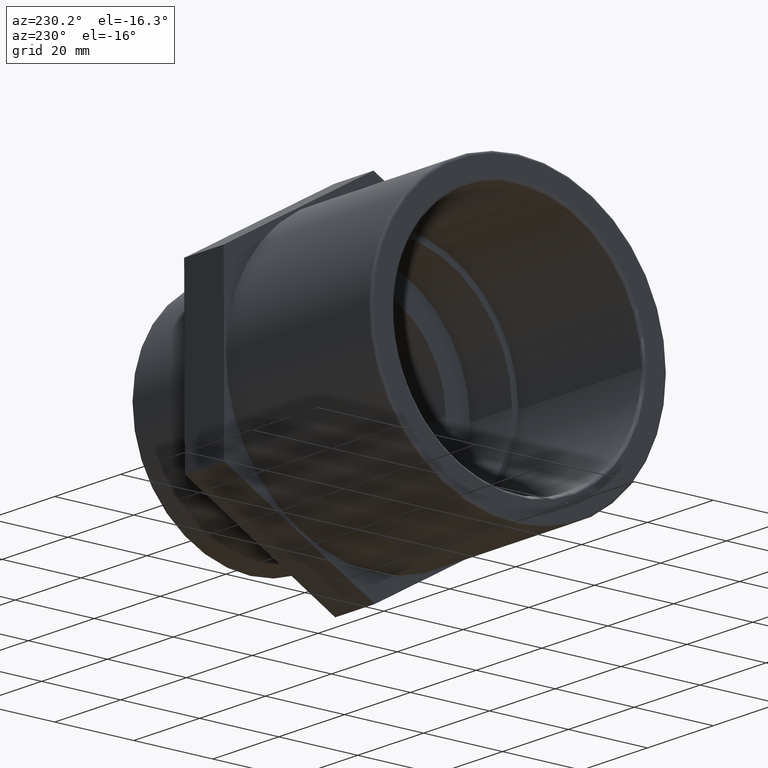
[diagram: clean part render]
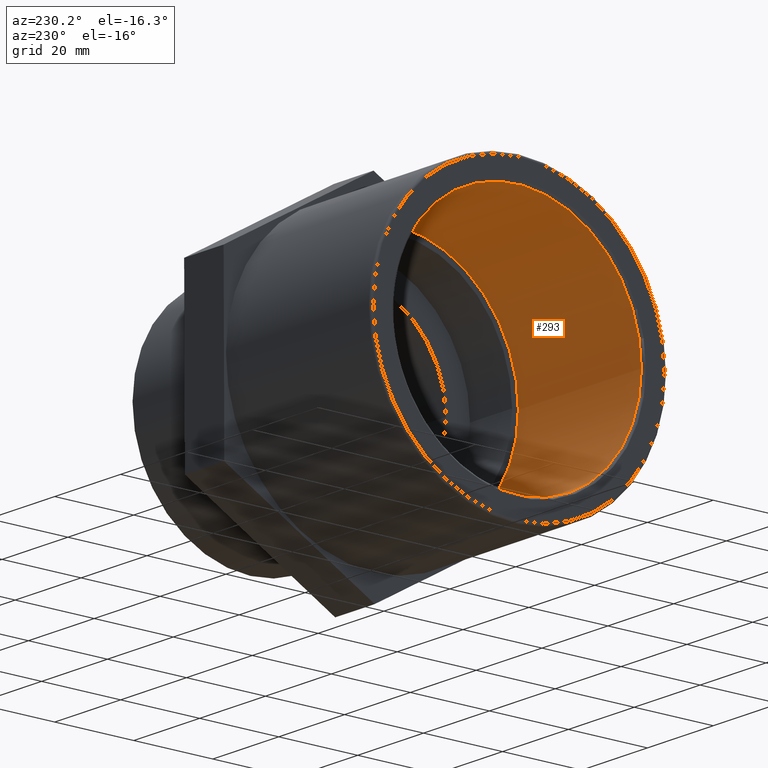
[diagram: same view with one face highlighted and labeled with its STEP entity id]
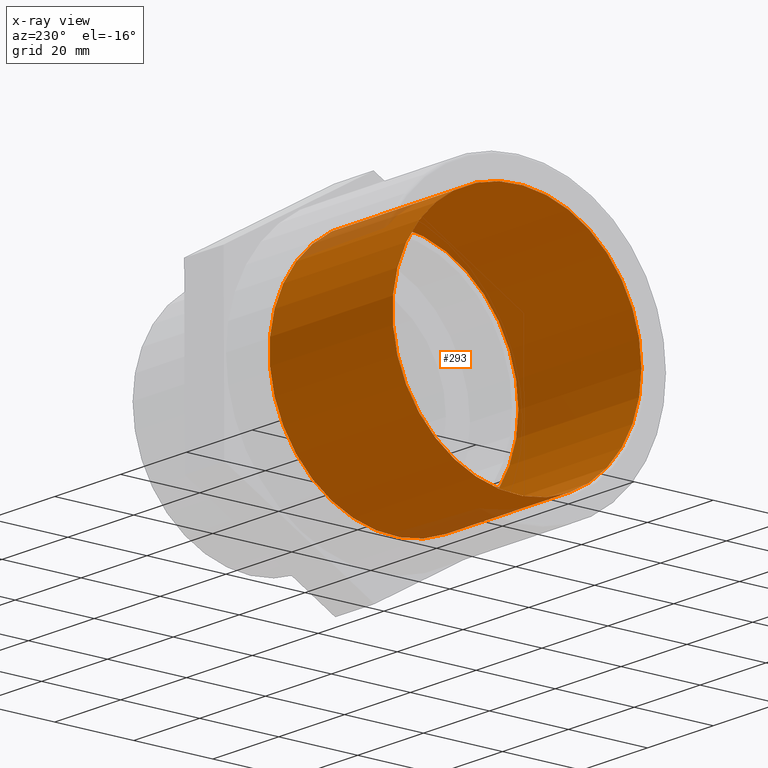
[diagram: x-ray of the same camera — body ghosted, the highlighted face saturated]
A machine part, auxiliary view. The second image highlights one B-rep face of the part: STEP entity #293.
The next image is the same camera in x-ray: the body ghosted, the highlighted face saturated — about 3% of this face is hidden behind the body in this view.
In plain terms, the highlighted cylindrical surface (bore or boss wall) has radius 31.5 mm, axis along (-1, -0, 0).
Its self-contained STEP definition (entity closure, byte-faithful):
#17=CYLINDRICAL_SURFACE('',#325,31.5);
#27=FACE_BOUND('',#95,.T.);
#42=CIRCLE('',#322,31.5);
#44=CIRCLE('',#326,31.5);
#66=FACE_OUTER_BOUND('',#94,.T.);
#94=EDGE_LOOP('',(#242));
#95=EDGE_LOOP('',(#243));
#165=VERTEX_POINT('',#485);
#167=VERTEX_POINT('',#491);
#197=EDGE_CURVE('',#165,#165,#42,.T.);
#199=EDGE_CURVE('',#167,#167,#44,.T.);
#242=ORIENTED_EDGE('',*,*,#199,.F.);
#243=ORIENTED_EDGE('',*,*,#197,.F.);
#293=ADVANCED_FACE('',(#66,#27),#17,.F.);
#322=AXIS2_PLACEMENT_3D('',#486,#396,#397);
#325=AXIS2_PLACEMENT_3D('',#490,#402,#403);
#326=AXIS2_PLACEMENT_3D('',#492,#404,#405);
#396=DIRECTION('center_axis',(1.,6.73555739531044E-16,0.));
#397=DIRECTION('ref_axis',(-6.74063979236703E-16,1.,6.12323399573677E-17));
#402=DIRECTION('center_axis',(-1.,-6.73555739531044E-16,0.));
#403=DIRECTION('ref_axis',(7.04903507698512E-16,-1.,0.));
#404=DIRECTION('center_axis',(-1.,-6.73555739531044E-16,0.));
#405=DIRECTION('ref_axis',(0.,0.,1.));
#485=CARTESIAN_POINT('',(-40.37,-31.5,-5.78645612597124E-15));
#486=CARTESIAN_POINT('Origin',(-40.37,-1.9659867390112E-14,0.));
#490=CARTESIAN_POINT('Origin',(-22.,-7.28664845492676E-15,0.));
#491=CARTESIAN_POINT('',(-3.,-31.5,0.));
#492=CARTESIAN_POINT('Origin',(-3.00000000000002,5.51091059616307E-15,0.));